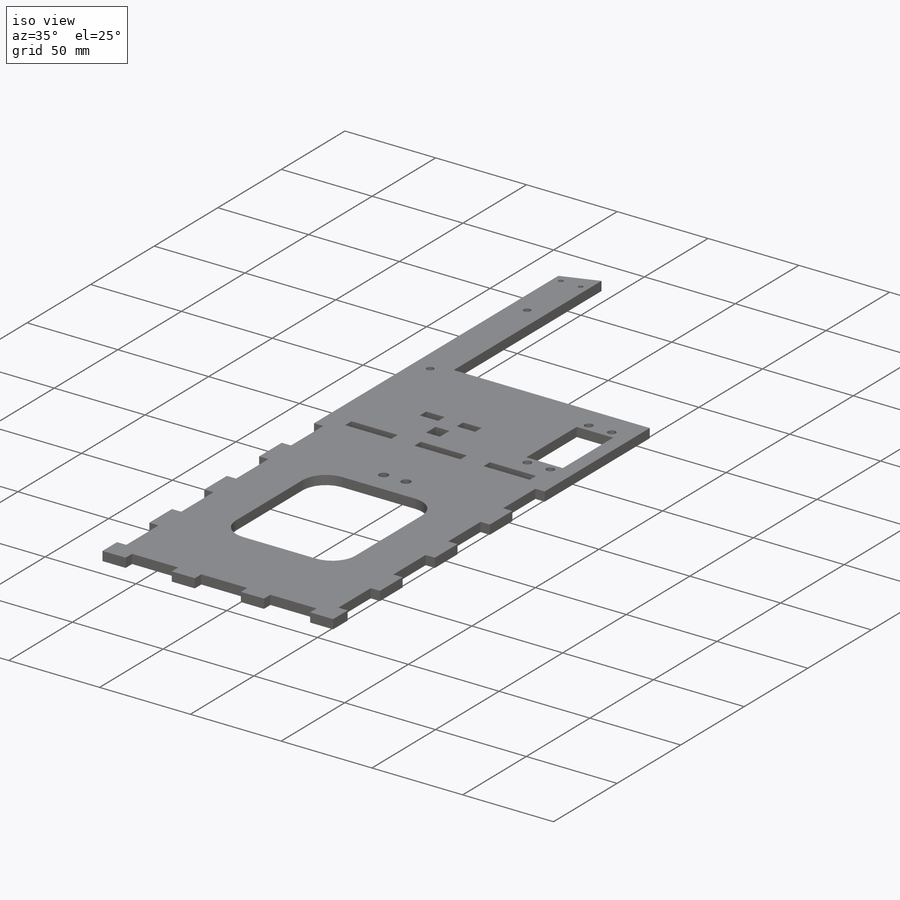
[diagram: iso view]
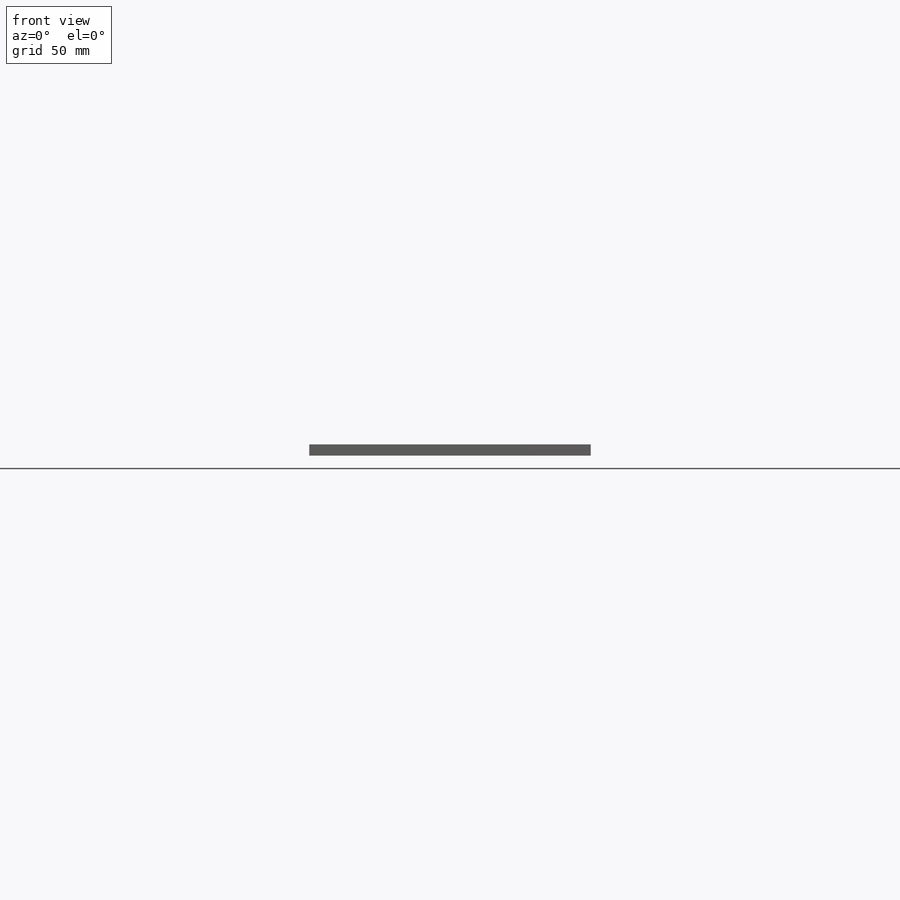
[diagram: front view]
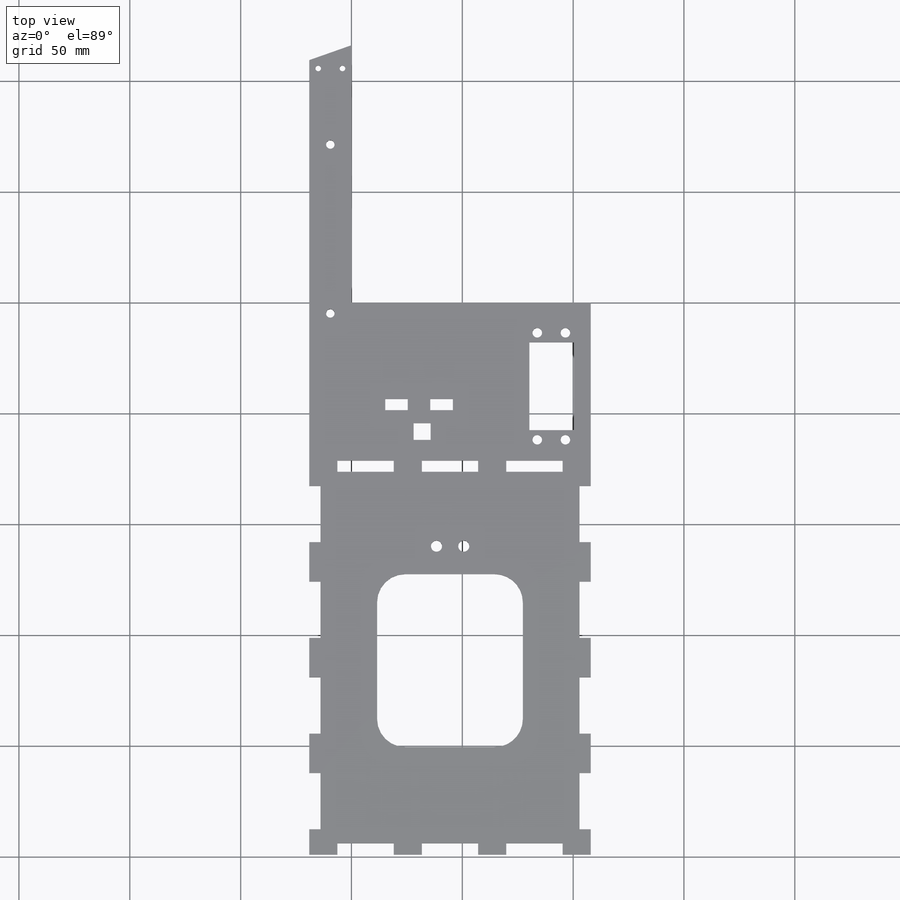
[diagram: top view]
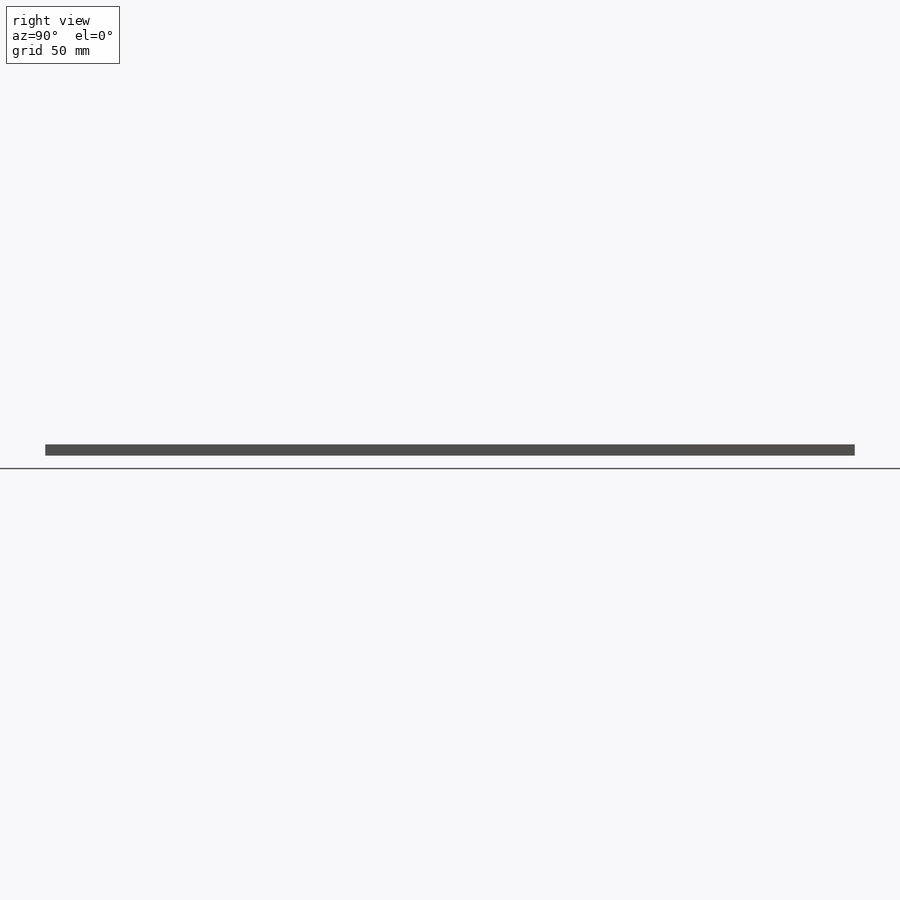
[diagram: right view]
SOLIDWORKS PART (.sldprt)
format: sldprt  version: not decoded by parser v0  size: 590,848 bytes
history: native  units: mm
features: sketch x15, cut_extrude x14, material x1, extrude x1 (+13 scaffold rows collapsed)
feature tree (44):
  scaffold x13  (default folders/planes/origin — collapsed)
  material  "Material <not specified>"
  sketch  "Sketch2"  dims[c1.D1=107.95mm c1.D2=60.96mm c1.D3=65.786mm c1.D4=~18.962282mm c1.D5=60.96mm c1.D6=~18.962282mm c1.D7=~96.64646mm c2.D7=90.0deg c2.D8=~96.64646mm c3.D8=90.0deg c3.D9=177.8mm c3.D3=~180.689414mm c3.D4=~180.695398mm c4.D4=180.0deg c4.D5=127.0mm]
  extrude  "Boss-Extrude1"  Depth=5.08mm
  sketch  "Sketch3"  dims[c1.D1=20.066mm c1.D2=39.624mm c1.D3=10.16mm c1.D4=11.176mm c1.D5=7.62mm c2.D3=~10.058152mm c2.D4=20.066mm c3.D4=270.0deg c3.D3=~191.523614mm c4.D4=7.62mm]
  cut_extrude  "Cut-Extrude1"  [1 undecoded]
  sketch  "Sketch4"  dims[c1.D1=4.318mm c1.D3=4.318mm c1.D6=4.318mm c1.D7=4.318mm c1.D2=12.7mm c2.D3=3.556mm c2.D4=3.81mm c2.D5=4.318mm c2.D6=12.7mm c2.D7=3.81mm c2.D8=4.318mm c2.D9=4.318mm c2.D10=3.556mm]
  cut_extrude  "Cut-Extrude2"  [1 undecoded]
  sketch  "Sketch5"  dims[c1.D2=12.7mm c1.D1=30.607mm c2.D2=~65.566449mm c2.D3=~30.638895mm c2.D4=~122.461402mm c2.D5=~48.520282mm]
  cut_extrude  "Cut-Extrude3"  [1 undecoded]
  sketch  "Sketch6"  dims[D1=5.08mm D2=11.43mm D3=25.4mm]
  cut_extrude  "Cut-Extrude4"  [1 undecoded]
  sketch  "Sketch7"  dims[D1=5.08mm D2=25.4mm D3=17.78mm]
  cut_extrude  "Cut-Extrude5"  [1 undecoded]
  sketch  "Sketch8"  dims[D1=5.08mm D2=17.78mm D3=5.08mm D4=25.4mm D5=17.78mm D6=25.4mm]
  cut_extrude  "Cut-Extrude6"  [1 undecoded]
  sketch  "Sketch9"  dims[D1=5.08mm D2=5.08mm D3=5.08mm D4=5.08mm D5=0.0mm D6=0.0mm D7=0.0mm D8=0.0mm D9=0.0mm D10=0.0mm D11=0.0mm D12=0.0mm]
  cut_extrude  "Cut-Extrude7"  [1 undecoded]
  sketch  "Sketch10"  dims[c1.D1=5.08mm c1.D2=12.7mm c1.D3=5.08mm c2.D3=90.0deg c3.D3=~21.756378mm c4.D3=90.0deg c5.D3=6.35mm c5.D4=25.4mm c5.D5=25.4mm c5.D6=12.7mm c5.D7=0.0mm c5.D8=5.08mm c5.D9=5.08mm c5.D10=0.0mm c5.D11=25.4mm c5.D12=12.7mm]
  cut_extrude  "Cut-Extrude8"  [1 undecoded]
  sketch  "Sketch11"  dims[D1=5.08mm D2=0.0mm D3=0.0mm D4=5.08mm D5=5.08mm D6=0.0mm D7=0.0mm D8=0.0mm D9=0.0mm D10=12.7mm]
  cut_extrude  "Cut-Extrude9"  [1 undecoded]
  sketch  "Sketch12"  dims[c1.D1=2.54mm c1.D3=2.54mm c1.D2=~4.051975mm c2.D3=4.064mm]
  cut_extrude  "Cut-Extrude10"  [1 undecoded]
  sketch  "Sketch13"  dims[D1=5.08mm D2=5.08mm D3=10.16mm D4=10.16mm D5=10.16mm D6=34.29mm D7=34.544mm]
  cut_extrude  "Cut-Extrude11"  [1 undecoded]
  sketch  "Sketch14"  dims[c1.D1=~5.79508mm c1.D2=~5.731041mm c2.D2=90.0deg c3.D2=7.62mm c3.D3=7.62mm c3.D4=47.117mm]
  cut_extrude  "Cut-Extrude12"  [1 undecoded]
  sketch  "Sketch15"  dims[D1=3.81mm D2=76.2mm D3=38.1mm D4=9.5377mm D5=9.5123mm]
  cut_extrude  "Cut-Extrude13"  [1 undecoded]
  sketch  "Sketch16"  dims[D1=4.9911mm D2=~57.291361mm D3=57.404mm]
  cut_extrude  "Cut-Extrude14"  [1 undecoded]
decode coverage: 16 of 30 modeling features carry decoded parameters
note: ~ marks probable driven/reference dimensions
note: 14 parameter values undecoded
summary: no parameter record found for 14 features
note: suppression state not decoded; provenance and decode notes live in map.json
